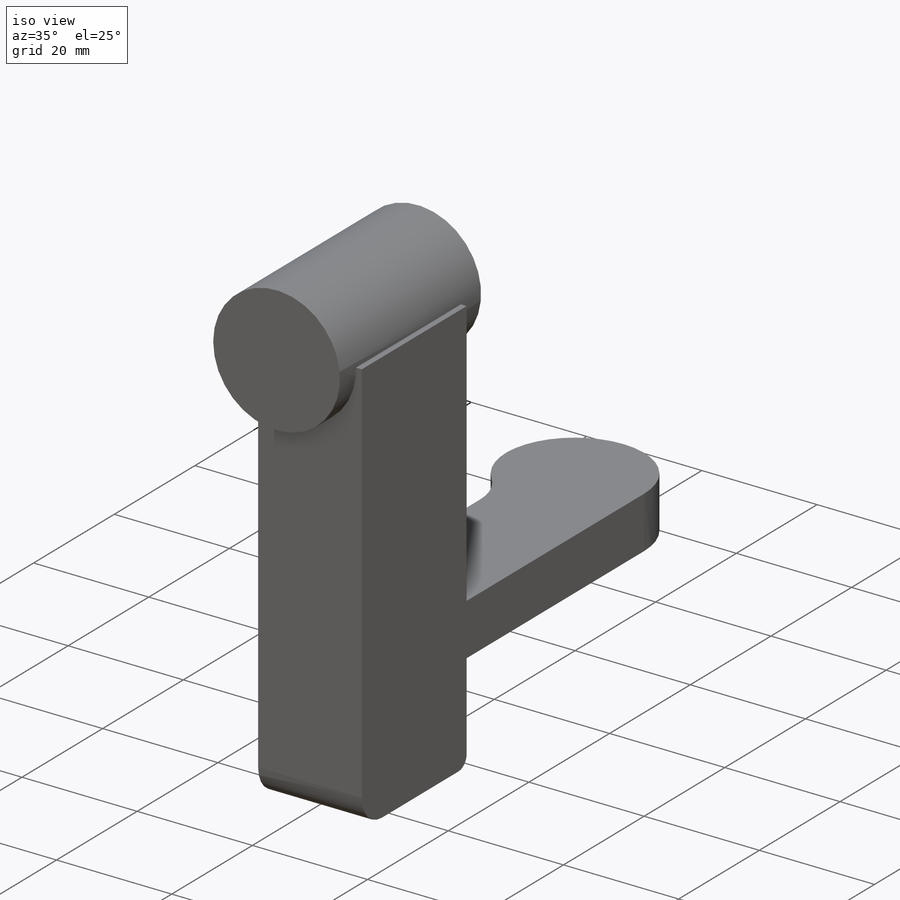
[diagram: iso view]
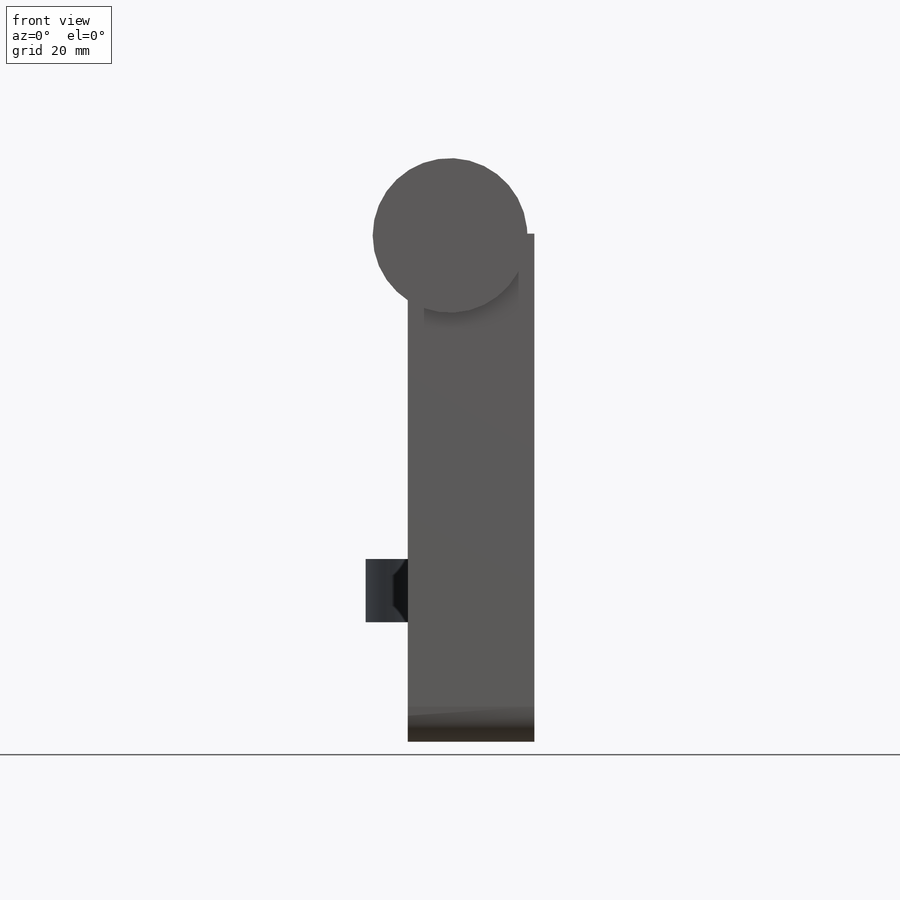
[diagram: front view]
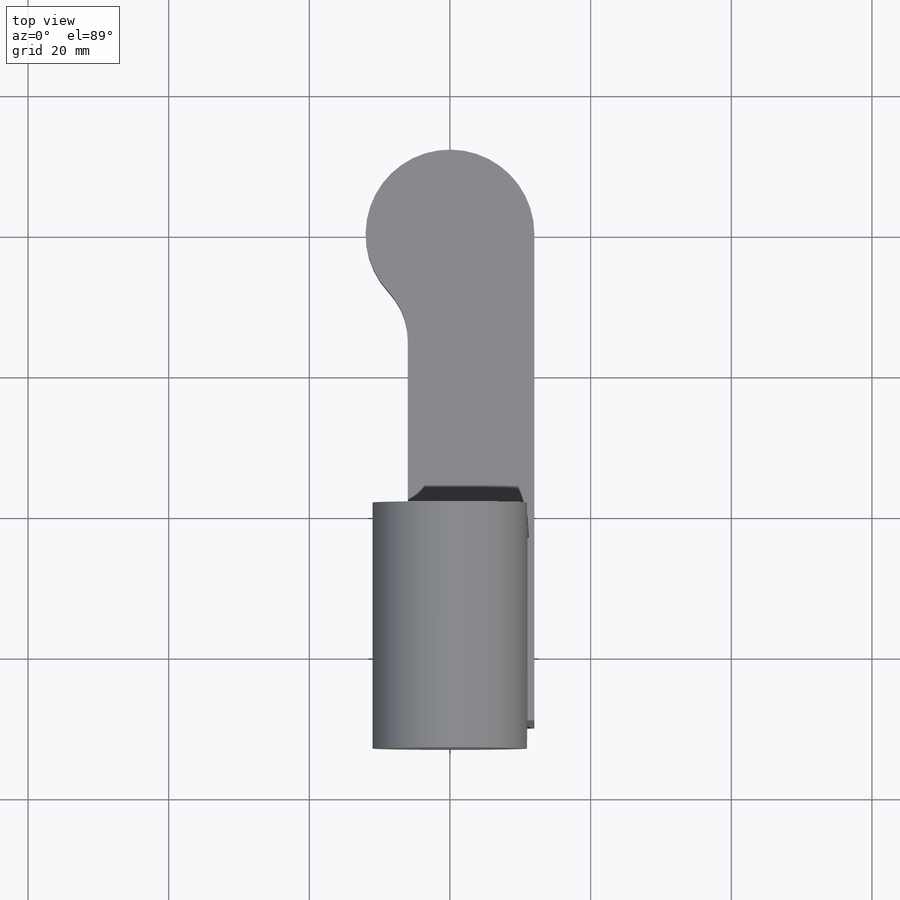
[diagram: top view]
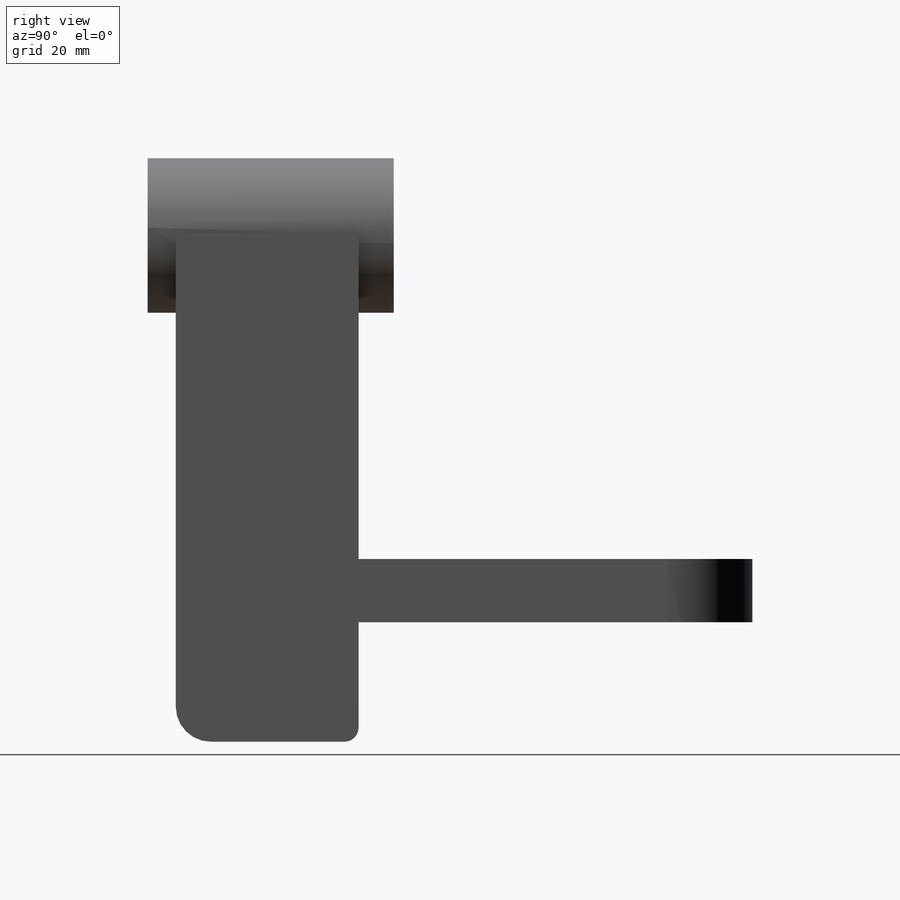
[diagram: right view]
SOLIDWORKS PART (.sldprt)
format: sldprt  version: not decoded by parser v0  size: 176,128 bytes
history: native  units: mm
features: sketch x4, extrude x3, plane x3, fillet x2, material x1 (+11 scaffold rows collapsed)
feature tree (24):
  scaffold x11  (default folders/planes/origin — collapsed)
  material  "Material <not specified>"
  sketch  "Sketch1"  dims[D1=44.0mm D2=18.0mm]
  extrude  "Boss-Extrude1"  Depth=9mm
  plane  "Plane2"
  sketch  "Sketch2"  dims[D1=26.0mm]
  extrude  "Boss-Extrude2"  Depth=46.257033mm
  fillet  "Fillet2"  Radius=2mm
  fillet  "Fillet3"  Radius=5mm
  plane  "Plane3"
  sketch  "Sketch3"  dims[D1=6.0mm D2=46.0mm]
  extrude  "Boss-Extrude3"  Depth=5mm
  plane  "Plane4"
  sketch  "Sketch4"
decode coverage: 8 of 9 modeling features carry decoded parameters
note: suppression state not decoded; provenance and decode notes live in map.json
